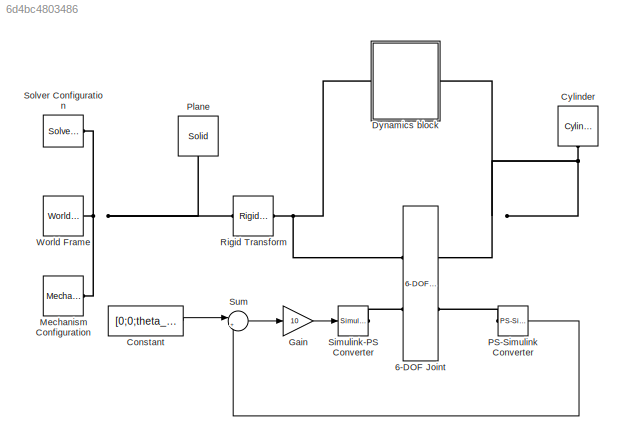
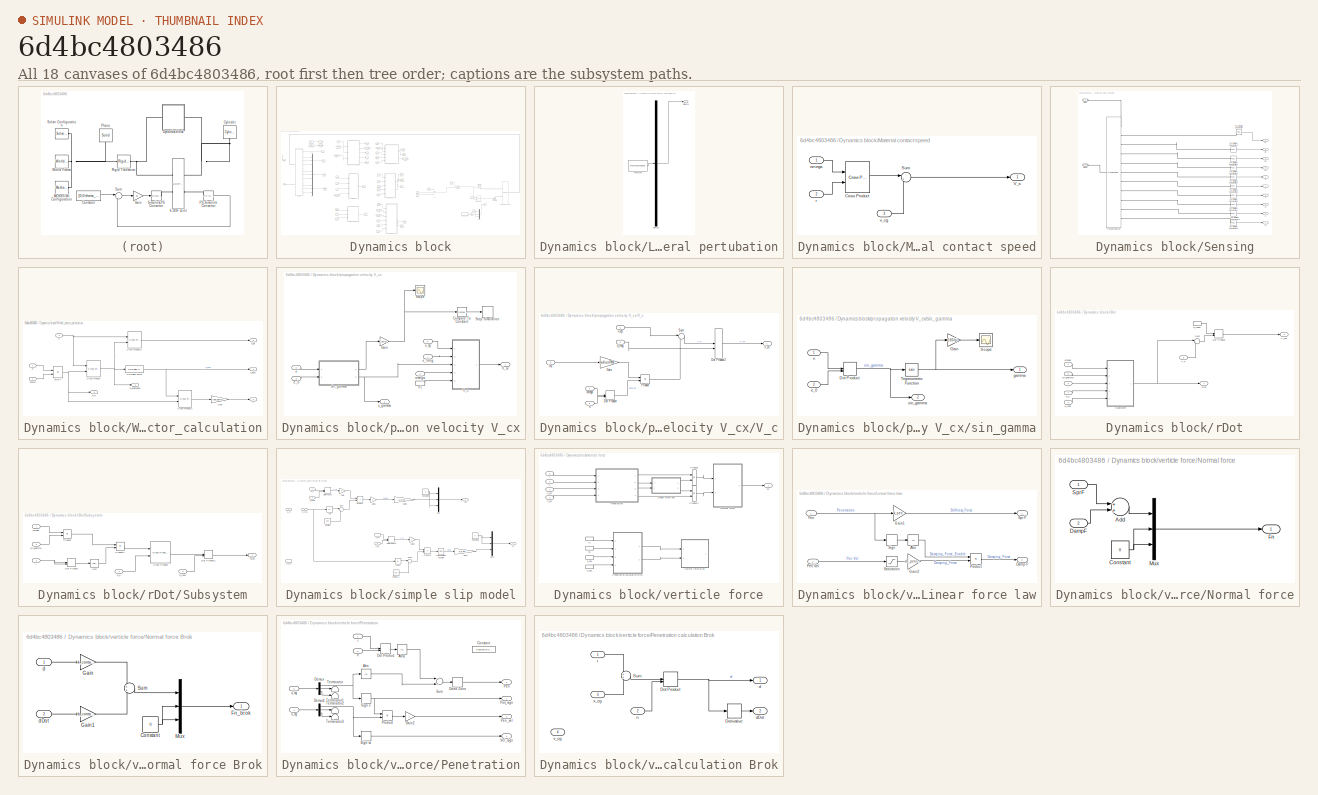
[diagram: thumbnail index - all 18 canvases of the model, root first then tree order]
MODEL slx_6d4bc4803486
KIND model
CONFIG AbsTol = auto
CONFIG EnableMultiTasking = off
CONFIG FixedStep = auto
CONFIG MaxStep = auto
CONFIG MinStep = auto
CONFIG RelTol = 1e-3
CONFIG SampleTimeConstraint = Unconstrained
CONFIG Solver = VariableStepAuto
CONFIG SolverName = VariableStepAuto
CONFIG StartTime = 0.0
CONFIG StopTime = 12
BLOCK [Reference] 6-DOF Joint  REF=sm_lib/Joints/6-DOF Joint
  Ports = [0, 0, 0, 0, 0, 2, 2]
  SourceBlock = sm_lib/Joints/6-DOF Joint
  SourceProductBaseCode = MS
  SourceProductName = Simscape Multibody
  SourceType = 6-DOF Joint
BLOCK [Constant] Constant
  Value = [0;0;theta_0]
BLOCK [Reference] Cylinder  REF=Parts_Lib/Cylinder
  Ports = [0, 0, 0, 0, 0, 1]
  SourceBlock = Parts_Lib/Cylinder
  SourceType = Solid Cylinder with Markings
  Tag = CustomStyle
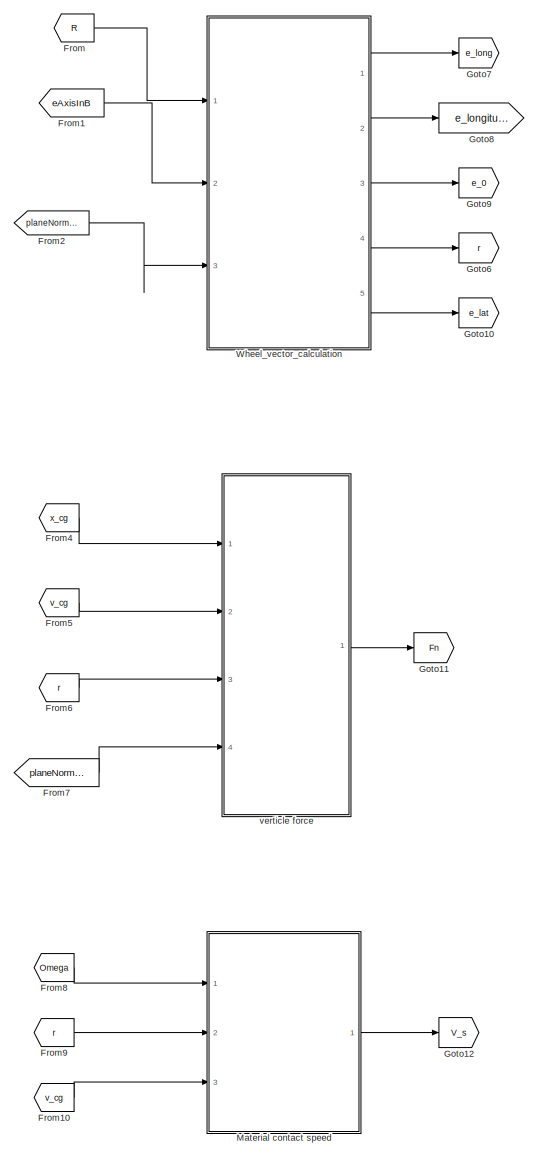
[diagram: Dynamics block - part 1/4, left side, full height]
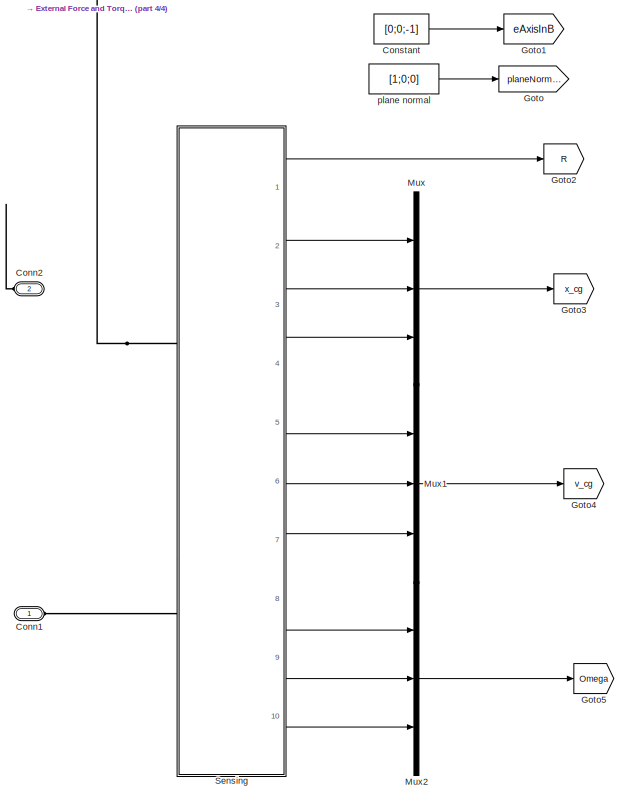
[diagram: Dynamics block - part 2/4, middle left region]
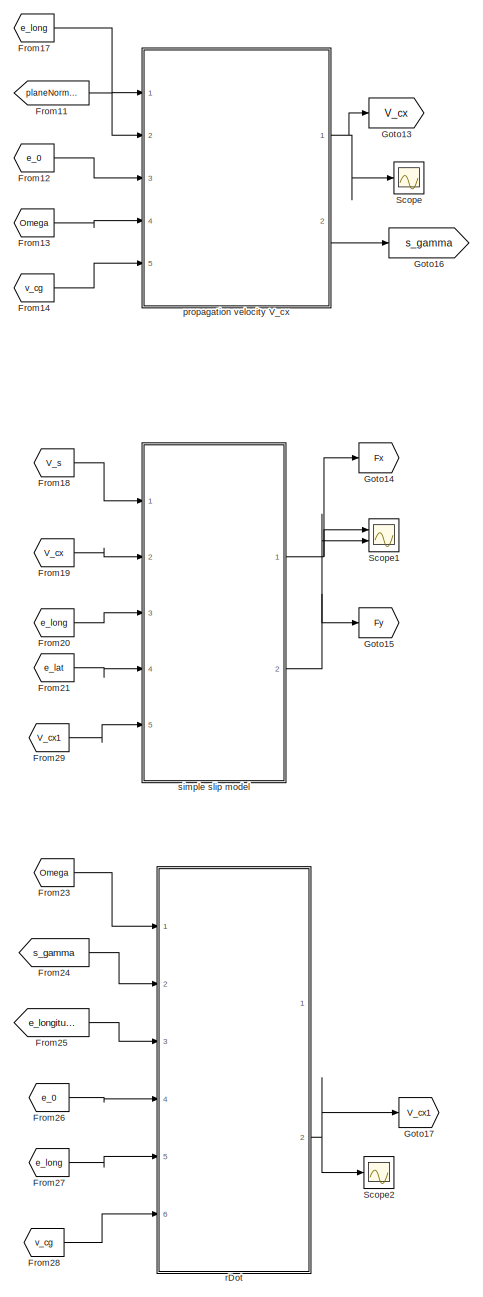
[diagram: Dynamics block - part 3/4, center side, full height]
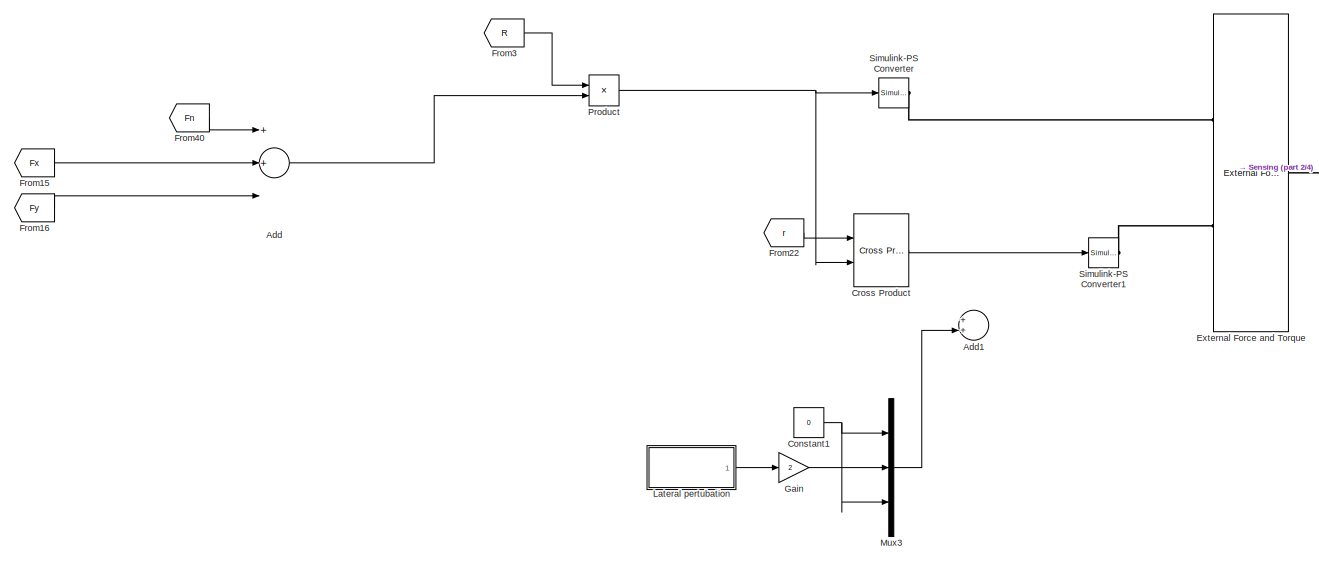
[diagram: Dynamics block - part 4/4, middle right region]
BLOCK [SubSystem] Dynamics block
  Ports = [0, 0, 0, 0, 0, 1, 1]
  RequestExecContextInheritance = off
  Variant = off
BLOCK [Sum] Dynamics block/Add
  InputSameDT = off
  Inputs = 3
  OutDataTypeStr = Inherit: Inherit via internal rule
  Ports = [3, 1]
  SaturateOnIntegerOverflow = off
BLOCK [Sum] Dynamics block/Add1
  Commented = on
  InputSameDT = off
  OutDataTypeStr = Inherit: Inherit via internal rule
  Ports = [2, 1]
  SaturateOnIntegerOverflow = off
BLOCK [PMIOPort] Dynamics block/Conn1
  Port = 1
  Side = Left
BLOCK [PMIOPort] Dynamics block/Conn2
  Port = 2
  Side = Right
BLOCK [Constant] Dynamics block/Constant
  Value = [0;0;-1]
BLOCK [Constant] Dynamics block/Constant1
  Commented = on
  Value = 0
BLOCK [Reference] Dynamics block/Cross Product  REF=vrlib/Utilities/Cross Product
  Ports = [2, 1]
  SourceBlock = vrlib/Utilities/Cross Product
  SourceProductBaseCode = VR
  SourceProductName = Simulink 3D Animation
  SourceType = Cross Product
BLOCK [Reference] Dynamics block/External Force and Torque  REF=sm_lib/Forces and
Torques/External Force
and Torque
  Ports = [0, 0, 0, 0, 0, 2, 1]
  SourceBlock = sm_lib/Forces and\nTorques/External Force\nand Torque
  SourceProductBaseCode = MS
  SourceProductName = Simscape Multibody
  SourceType = External Force\nand Torque
BLOCK [From] Dynamics block/From
  GotoTag = R
BLOCK [From] Dynamics block/From1
  GotoTag = eAxisInB
BLOCK [From] Dynamics block/From10
  GotoTag = v_cg
BLOCK [From] Dynamics block/From11
  GotoTag = planeNormal
BLOCK [From] Dynamics block/From12
  GotoTag = e_0
BLOCK [From] Dynamics block/From13
  GotoTag = Omega
BLOCK [From] Dynamics block/From14
  GotoTag = v_cg
BLOCK [From] Dynamics block/From15
  GotoTag = Fx
BLOCK [From] Dynamics block/From16
  GotoTag = Fy
BLOCK [From] Dynamics block/From17
  GotoTag = e_long
BLOCK [From] Dynamics block/From18
  GotoTag = V_s
BLOCK [From] Dynamics block/From19
  GotoTag = V_cx
BLOCK [From] Dynamics block/From2
  GotoTag = planeNormal
BLOCK [From] Dynamics block/From20
  GotoTag = e_long
BLOCK [From] Dynamics block/From21
  GotoTag = e_lat
BLOCK [From] Dynamics block/From22
  GotoTag = r
BLOCK [From] Dynamics block/From23
  GotoTag = Omega
BLOCK [From] Dynamics block/From24
  GotoTag = s_gamma
BLOCK [From] Dynamics block/From25
  GotoTag = e_longitudinal
BLOCK [From] Dynamics block/From26
  GotoTag = e_0
BLOCK [From] Dynamics block/From27
  GotoTag = e_long
BLOCK [From] Dynamics block/From28
  GotoTag = v_cg
BLOCK [From] Dynamics block/From29
  GotoTag = V_cx1
BLOCK [From] Dynamics block/From3
  GotoTag = R
BLOCK [From] Dynamics block/From4
  GotoTag = x_cg
BLOCK [From] Dynamics block/From40
  GotoTag = Fn
BLOCK [From] Dynamics block/From5
  GotoTag = v_cg
BLOCK [From] Dynamics block/From6
  GotoTag = r
BLOCK [From] Dynamics block/From7
  GotoTag = planeNormal
BLOCK [From] Dynamics block/From8
  GotoTag = Omega
BLOCK [From] Dynamics block/From9
  GotoTag = r
BLOCK [Gain] Dynamics block/Gain
  Commented = on
  Gain = 2
  OutDataTypeStr = Inherit: Inherit via internal rule
  ParamDataTypeStr = Inherit: Inherit via internal rule
  SaturateOnIntegerOverflow = off
BLOCK [Goto] Dynamics block/Goto
  GotoTag = planeNormal
BLOCK [Goto] Dynamics block/Goto1
  GotoTag = eAxisInB
BLOCK [Goto] Dynamics block/Goto10
  GotoTag = e_lat
BLOCK [Goto] Dynamics block/Goto11
  GotoTag = Fn
BLOCK [Goto] Dynamics block/Goto12
  GotoTag = V_s
BLOCK [Goto] Dynamics block/Goto13
  GotoTag = V_cx
BLOCK [Goto] Dynamics block/Goto14
  GotoTag = Fx
BLOCK [Goto] Dynamics block/Goto15
  GotoTag = Fy
BLOCK [Goto] Dynamics block/Goto16
  GotoTag = s_gamma
BLOCK [Goto] Dynamics block/Goto17
  GotoTag = V_cx1
BLOCK [Goto] Dynamics block/Goto2
  GotoTag = R
BLOCK [Goto] Dynamics block/Goto3
  GotoTag = x_cg
BLOCK [Goto] Dynamics block/Goto4
  GotoTag = v_cg
BLOCK [Goto] Dynamics block/Goto5
  GotoTag = Omega
BLOCK [Goto] Dynamics block/Goto6
  GotoTag = r
BLOCK [Goto] Dynamics block/Goto7
  GotoTag = e_long
BLOCK [Goto] Dynamics block/Goto8
  GotoTag = e_longitudinal
BLOCK [Goto] Dynamics block/Goto9
  GotoTag = e_0
BLOCK [SubSystem] Dynamics block/Lateral pertubation
  ClipboardFcn = sigbuilder_block('clipboard');
  CloseFcn = sigbuilder_block('close');
  Commented = on
  ContinueFcn = sigbuilder_block('continue');
  CopyFcn = sigbuilder_block('copy');
  DeleteFcn = sigbuilder_block('delete');
  LoadFcn = sigbuilder_block('load');
  MaskHideContents = on
  ModelCloseFcn = sigbuilder_block('modelClose');
  NameChangeFcn = sigbuilder_block('namechange');
  OpenFcn = sigbuilder_block('open',[437.6 199.2 550.4 400 ]);
  PauseFcn = sigbuilder_block('pause');
  Ports = [0, 1]
  PreSaveFcn = sigbuilder_block('preSave');
  RequestExecContextInheritance = off
  StartFcn = sigbuilder_block('start');
  StopFcn = sigbuilder_block('stop');
  Tag = STV Subsys
  Variant = off
BLOCK [Demux] Dynamics block/Lateral pertubation/Demux
  Outputs = 1
  Ports = [1, 1]
  Tag = STV Demux
BLOCK [FromWorkspace] Dynamics block/Lateral pertubation/FromWs
  SampleTime = 0
  Tag = STV FromWs
  VariableName = tuvar
  ZeroCross = on
BLOCK [Outport] Dynamics block/Lateral pertubation/Signal 1
  IconDisplay = Port number
  Tag = STV Outport
BLOCK [SubSystem] Dynamics block/Material contact speed
  Ports = [3, 1]
  RequestExecContextInheritance = off
  Variant = off
BLOCK [Reference] Dynamics block/Material contact speed/Cross Product  REF=vrlib/Utilities/Cross Product
  Ports = [2, 1]
  SourceBlock = vrlib/Utilities/Cross Product
  SourceProductBaseCode = VR
  SourceProductName = Simulink 3D Animation
  SourceType = Cross Product
BLOCK [Sum] Dynamics block/Material contact speed/Sum
  IconShape = round
  InputSameDT = off
  Inputs = |++
  OutDataTypeStr = Inherit: Inherit via internal rule
  Ports = [2, 1]
  SaturateOnIntegerOverflow = off
BLOCK [Outport] Dynamics block/Material contact speed/V_s
  IconDisplay = Port number
BLOCK [Inport] Dynamics block/Material contact speed/omega
  IconDisplay = Port number
BLOCK [Inport] Dynamics block/Material contact speed/r
  IconDisplay = Port number
  Port = 2
BLOCK [Inport] Dynamics block/Material contact speed/v_cg
  IconDisplay = Port number
  Port = 3
BLOCK [Mux] Dynamics block/Mux
  DisplayOption = bar
  Inputs = 3
  Ports = [3, 1]
BLOCK [Mux] Dynamics block/Mux1
  DisplayOption = bar
  Inputs = 3
  Ports = [3, 1]
BLOCK [Mux] Dynamics block/Mux2
  DisplayOption = bar
  Inputs = 3
  Ports = [3, 1]
BLOCK [Mux] Dynamics block/Mux3
  Commented = on
  DisplayOption = bar
  Inputs = 3
  Ports = [3, 1]
BLOCK [Product] Dynamics block/Product
  InputSameDT = off
  Inputs = /*
  Multiplication = Matrix(*)
  OutDataTypeStr = Inherit: Inherit via internal rule
  Ports = [2, 1]
  RndMeth = Floor
  SaturateOnIntegerOverflow = off
BLOCK [Scope] Dynamics block/Scope
  NumInputPorts = 1
  Ports = [1]
  ScopeSpecificationString = Simulink.scopes.TimeScopeBlockCfg('CurrentConfiguration', extmgr.ConfigurationSet(extmgr.Configuration('Core','General UI',true),extmgr.Configuration('Core','Source UI',true),extmgr.Configuration('Sources','WiredSimulink',true,'DataLoggingVariableName','ScopeData1'),extmgr.Configuration('Visuals','Time Domain',true,'SerializedDisplays',{struct('MinYLimReal','-0.30794','MaxYLimReal','2.77145','YLab...<+1419ch>
BLOCK [Scope] Dynamics block/Scope1
  NumInputPorts = 2
  Ports = [2]
  ScopeSpecificationString = Simulink.scopes.TimeScopeBlockCfg('CurrentConfiguration', extmgr.ConfigurationSet(extmgr.Configuration('Core','General UI',true),extmgr.Configuration('Core','Source UI',true),extmgr.Configuration('Sources','WiredSimulink',true,'DataLoggingVariableName','ScopeData2'),extmgr.Configuration('Visuals','Time Domain',true,'SerializedDisplays',{struct('MinYLimReal','-14.33422','MaxYLimReal','35.2774','YLa...<+1531ch>
BLOCK [Scope] Dynamics block/Scope2
  NumInputPorts = 1
  Ports = [1]
  ScopeSpecificationString = Simulink.scopes.TimeScopeBlockCfg('CurrentConfiguration', extmgr.ConfigurationSet(extmgr.Configuration('Core','General UI',true),extmgr.Configuration('Core','Source UI',true),extmgr.Configuration('Sources','WiredSimulink',true,'DataLoggingVariableName','ScopeData3'),extmgr.Configuration('Visuals','Time Domain',true,'SerializedDisplays',{struct('MinYLimReal','-0.38646','MaxYLimReal','3.47811','YLab...<+1395ch>
BLOCK [SubSystem] Dynamics block/Sensing
  Ports = [0, 10, 0, 0, 0, 2]
  RequestExecContextInheritance = off
  Variant = off
BLOCK [PMIOPort] Dynamics block/Sensing/Disk
  Port = 1
  Side = Left
BLOCK [Reference] Dynamics block/Sensing/PS-Simulink Converter  REF=nesl_utility/PS-Simulink
Converter
  Ports = [0, 1, 0, 0, 0, 1]
  SourceBlock = nesl_utility/PS-Simulink\nConverter
  SourceProductBaseCode = SS
  SourceProductName = Simscape
  SourceType = PS-Simulink\nConverter
BLOCK [Reference] Dynamics block/Sensing/PS-Simulink Converter1  REF=nesl_utility/PS-Simulink
Converter
  Ports = [0, 1, 0, 0, 0, 1]
  SourceBlock = nesl_utility/PS-Simulink\nConverter
  SourceProductBaseCode = SS
  SourceProductName = Simscape
  SourceType = PS-Simulink\nConverter
BLOCK [Reference] Dynamics block/Sensing/PS-Simulink Converter2  REF=nesl_utility/PS-Simulink
Converter
  Ports = [0, 1, 0, 0, 0, 1]
  SourceBlock = nesl_utility/PS-Simulink\nConverter
  SourceProductBaseCode = SS
  SourceProductName = Simscape
  SourceType = PS-Simulink\nConverter
BLOCK [Reference] Dynamics block/Sensing/PS-Simulink Converter3  REF=nesl_utility/PS-Simulink
Converter
  Ports = [0, 1, 0, 0, 0, 1]
  SourceBlock = nesl_utility/PS-Simulink\nConverter
  SourceProductBaseCode = SS
  SourceProductName = Simscape
  SourceType = PS-Simulink\nConverter
BLOCK [Reference] Dynamics block/Sensing/PS-Simulink Converter4  REF=nesl_utility/PS-Simulink
Converter
  Ports = [0, 1, 0, 0, 0, 1]
  SourceBlock = nesl_utility/PS-Simulink\nConverter
  SourceProductBaseCode = SS
  SourceProductName = Simscape
  SourceType = PS-Simulink\nConverter
BLOCK [Reference] Dynamics block/Sensing/PS-Simulink Converter5  REF=nesl_utility/PS-Simulink
Converter
  Ports = [0, 1, 0, 0, 0, 1]
  SourceBlock = nesl_utility/PS-Simulink\nConverter
  SourceProductBaseCode = SS
  SourceProductName = Simscape
  SourceType = PS-Simulink\nConverter
BLOCK [Reference] Dynamics block/Sensing/PS-Simulink Converter6  REF=nesl_utility/PS-Simulink
Converter
  Ports = [0, 1, 0, 0, 0, 1]
  SourceBlock = nesl_utility/PS-Simulink\nConverter
  SourceProductBaseCode = SS
  SourceProductName = Simscape
  SourceType = PS-Simulink\nConverter
BLOCK [Reference] Dynamics block/Sensing/PS-Simulink Converter7  REF=nesl_utility/PS-Simulink
Converter
  Ports = [0, 1, 0, 0, 0, 1]
  SourceBlock = nesl_utility/PS-Simulink\nConverter
  SourceProductBaseCode = SS
  SourceProductName = Simscape
  SourceType = PS-Simulink\nConverter
BLOCK [Reference] Dynamics block/Sensing/PS-Simulink Converter8  REF=nesl_utility/PS-Simulink
Converter
  Ports = [0, 1, 0, 0, 0, 1]
  SourceBlock = nesl_utility/PS-Simulink\nConverter
  SourceProductBaseCode = SS
  SourceProductName = Simscape
  SourceType = PS-Simulink\nConverter
BLOCK [Reference] Dynamics block/Sensing/PS-Simulink Converter9  REF=nesl_utility/PS-Simulink
Converter
  Ports = [0, 1, 0, 0, 0, 1]
  SourceBlock = nesl_utility/PS-Simulink\nConverter
  SourceProductBaseCode = SS
  SourceProductName = Simscape
  SourceType = PS-Simulink\nConverter
BLOCK [Outport] Dynamics block/Sensing/R
  IconDisplay = Port number
BLOCK [Reference] Dynamics block/Sensing/Transform Sensor  REF=sm_lib/Frames and
Transforms/Transform
Sensor
  Ports = [0, 0, 0, 0, 0, 1, 11]
  SourceBlock = sm_lib/Frames and\nTransforms/Transform\nSensor
  SourceProductBaseCode = MS
  SourceProductName = Simscape Multibody
  SourceType = Transform\nSensor
BLOCK [PMIOPort] Dynamics block/Sensing/plane
  Port = 2
  Side = Left
BLOCK [Outport] Dynamics block/Sensing/vx
  IconDisplay = Port number
  Port = 5
BLOCK [Outport] Dynamics block/Sensing/vy
  IconDisplay = Port number
  Port = 6
BLOCK [Outport] Dynamics block/Sensing/vz
  IconDisplay = Port number
  Port = 7
BLOCK [Outport] Dynamics block/Sensing/wx
  IconDisplay = Port number
  Port = 8
BLOCK [Outport] Dynamics block/Sensing/wy
  IconDisplay = Port number
  Port = 9
BLOCK [Outport] Dynamics block/Sensing/wz
  IconDisplay = Port number
  Port = 10
BLOCK [Outport] Dynamics block/Sensing/x
  IconDisplay = Port number
  Port = 2
BLOCK [Outport] Dynamics block/Sensing/y
  IconDisplay = Port number
  Port = 3
BLOCK [Outport] Dynamics block/Sensing/z
  IconDisplay = Port number
  Port = 4
BLOCK [Reference] Dynamics block/Simulink-PS Converter  REF=nesl_utility/Simulink-PS
Converter
  Ports = [1, 0, 0, 0, 0, 0, 1]
  SourceBlock = nesl_utility/Simulink-PS\nConverter
  SourceProductBaseCode = SS
  SourceProductName = Simscape
  SourceType = Simulink-PS\nConverter
BLOCK [Reference] Dynamics block/Simulink-PS Converter1  REF=nesl_utility/Simulink-PS
Converter
  Ports = [1, 0, 0, 0, 0, 0, 1]
  SourceBlock = nesl_utility/Simulink-PS\nConverter
  SourceProductBaseCode = SS
  SourceProductName = Simscape
  SourceType = Simulink-PS\nConverter
BLOCK [SubSystem] Dynamics block/Wheel_vector_calculation
  Ports = [3, 5]
  RequestExecContextInheritance = off
  Variant = off
BLOCK [Reference] Dynamics block/Wheel_vector_calculation/Cross Product  REF=vrlib/Utilities/Cross Product
  Ports = [2, 1]
  SourceBlock = vrlib/Utilities/Cross Product
  SourceProductBaseCode = VR
  SourceProductName = Simulink 3D Animation
  SourceType = Cross Product
BLOCK [Reference] Dynamics block/Wheel_vector_calculation/Cross Product1  REF=vrlib/Utilities/Cross Product
  Ports = [2, 1]
  SourceBlock = vrlib/Utilities/Cross Product
  SourceProductBaseCode = VR
  SourceProductName = Simulink 3D Animation
  SourceType = Cross Product
BLOCK [Reference] Dynamics block/Wheel_vector_calculation/Cross Product2  REF=vrlib/Utilities/Cross Product
  Ports = [2, 1]
  SourceBlock = vrlib/Utilities/Cross Product
  SourceProductBaseCode = VR
  SourceProductName = Simulink 3D Animation
  SourceType = Cross Product
BLOCK [Gain] Dynamics block/Wheel_vector_calculation/Gain
  Gain = radiusRW
  OutDataTypeStr = Inherit: Inherit via internal rule
  ParamDataTypeStr = Inherit: Inherit via internal rule
  SaturateOnIntegerOverflow = off
BLOCK [Reference] Dynamics block/Wheel_vector_calculation/Normalize Vector  REF=vrlib/Utilities/Normalize Vector
  Ports = [1, 1]
  SourceBlock = vrlib/Utilities/Normalize Vector
  SourceProductBaseCode = VR
  SourceProductName = Simulink 3D Animation
  SourceType = Normalize Vector
BLOCK [Inport] Dynamics block/Wheel_vector_calculation/R
  IconDisplay = Port number
BLOCK [Product] Dynamics block/Wheel_vector_calculation/e0 in F
  InputSameDT = off
  Multiplication = Matrix(*)
  OutDataTypeStr = Inherit: Inherit via internal rule
  Ports = [2, 1]
  RndMeth = Floor
  SaturateOnIntegerOverflow = off
BLOCK [Inport] Dynamics block/Wheel_vector_calculation/e0Star
  IconDisplay = Port number
  Port = 2
BLOCK [Outport] Dynamics block/Wheel_vector_calculation/e_0
  IconDisplay = Port number
  Port = 3
BLOCK [Outport] Dynamics block/Wheel_vector_calculation/e_lat
  IconDisplay = Port number
  Port = 5
BLOCK [Outport] Dynamics block/Wheel_vector_calculation/e_long
  IconDisplay = Port number
BLOCK [Outport] Dynamics block/Wheel_vector_calculation/e_longitudinal
  IconDisplay = Port number
  Port = 2
BLOCK [Inport] Dynamics block/Wheel_vector_calculation/n
  IconDisplay = Port number
  Port = 3
BLOCK [Outport] Dynamics block/Wheel_vector_calculation/r
  IconDisplay = Port number
  Port = 4
BLOCK [Constant] Dynamics block/plane normal
  Value = [1;0;0]
BLOCK [SubSystem] Dynamics block/propagation velocity V_cx
  Ports = [5, 2]
  RequestExecContextInheritance = off
  Variant = off
BLOCK [Reference] Dynamics block/propagation velocity V_cx/Compare To Constant  REF=simulink/Logic and Bit
Operations/Compare
To Constant
  Ports = [1, 1]
  SourceBlock = simulink/Logic and Bit\nOperations/Compare\nTo Constant
  SourceProductBaseCode = SL
  SourceProductName = Simulink
  SourceType = Compare To Constant
BLOCK [Gain] Dynamics block/propagation velocity V_cx/Gain
  Gain = -180/pi
  OutDataTypeStr = Inherit: Inherit via internal rule
  ParamDataTypeStr = Inherit: Inherit via internal rule
  SaturateOnIntegerOverflow = off
BLOCK [Scope] Dynamics block/propagation velocity V_cx/Scope
  NumInputPorts = 1
  Ports = [1]
  ScopeSpecificationString = Simulink.scopes.TimeScopeBlockCfg('CurrentConfiguration', extmgr.ConfigurationSet(extmgr.Configuration('Core','General UI',true),extmgr.Configuration('Core','Source UI',true),extmgr.Configuration('Sources','WiredSimulink',true,'DataLoggingVariableName','ScopeData4'),extmgr.Configuration('Visuals','Time Domain',true,'SerializedDisplays',{struct('MinYLimReal','12.7368','MaxYLimReal','85.25147','YLab...<+1365ch>
BLOCK [Stop] Dynamics block/propagation velocity V_cx/Stop Simulation
BLOCK [SubSystem] Dynamics block/propagation velocity V_cx/V_c
  Ports = [5, 1]
  RequestExecContextInheritance = off
  Variant = off
BLOCK [DotProduct] Dynamics block/propagation velocity V_cx/V_c/Dot Product
  OutDataTypeStr = Inherit: Inherit via internal rule
BLOCK [DotProduct] Dynamics block/propagation velocity V_cx/V_c/Dot Product2
  OutDataTypeStr = Inherit: Inherit via internal rule
BLOCK [Gain] Dynamics block/propagation velocity V_cx/V_c/Gain
  Gain = radiusRW
  OutDataTypeStr = Inherit: Inherit via internal rule
  ParamDataTypeStr = Inherit: Inherit via internal rule
  SaturateOnIntegerOverflow = off
BLOCK [Inport] Dynamics block/propagation velocity V_cx/V_c/In3
  IconDisplay = Port number
  Port = 3
BLOCK [Product] Dynamics block/propagation velocity V_cx/V_c/Product
  InputSameDT = off
  OutDataTypeStr = Inherit: Inherit via internal rule
  Ports = [2, 1]
  RndMeth = Floor
  SaturateOnIntegerOverflow = off
BLOCK [Sum] Dynamics block/propagation velocity V_cx/V_c/Sum
  IconShape = round
  InputSameDT = off
  Inputs = |++
  OutDataTypeStr = Inherit: Inherit via internal rule
  Ports = [2, 1]
  SaturateOnIntegerOverflow = off
BLOCK [Outport] Dynamics block/propagation velocity V_cx/V_c/V_cx
  IconDisplay = Port number
BLOCK [Inport] Dynamics block/propagation velocity V_cx/V_c/e_long
  IconDisplay = Port number
  Port = 2
BLOCK [Inport] Dynamics block/propagation velocity V_cx/V_c/n
  IconDisplay = Port number
  Port = 5
BLOCK [Inport] Dynamics block/propagation velocity V_cx/V_c/omega
  IconDisplay = Port number
  Port = 4
BLOCK [Inport] Dynamics block/propagation velocity V_cx/V_c/v_cg
  IconDisplay = Port number
BLOCK [Outport] Dynamics block/propagation velocity V_cx/V_cx
  IconDisplay = Port number
BLOCK [Inport] Dynamics block/propagation velocity V_cx/e_0
  IconDisplay = Port number
  Port = 3
BLOCK [Inport] Dynamics block/propagation velocity V_cx/e_long
  IconDisplay = Port number
BLOCK [Inport] Dynamics block/propagation velocity V_cx/n
  IconDisplay = Port number
  Port = 2
BLOCK [InportShadow] Dynamics block/propagation velocity V_cx/n1
  IconDisplay = Port number
  Port = 2
BLOCK [Inport] Dynamics block/propagation velocity V_cx/omega
  IconDisplay = Port number
  Port = 4
BLOCK [Outport] Dynamics block/propagation velocity V_cx/s_gamma
  IconDisplay = Port number
  Port = 2
BLOCK [SubSystem] Dynamics block/propagation velocity V_cx/sin_gamma
  Ports = [2, 2]
  RequestExecContextInheritance = off
  Variant = off
BLOCK [DotProduct] Dynamics block/propagation velocity V_cx/sin_gamma/Dot Product
  OutDataTypeStr = Inherit: Inherit via internal rule
BLOCK [Gain] Dynamics block/propagation velocity V_cx/sin_gamma/Gain
  Gain = 180/pi
  OutDataTypeStr = Inherit: Inherit via internal rule
  ParamDataTypeStr = Inherit: Inherit via internal rule
  SaturateOnIntegerOverflow = off
BLOCK [Scope] Dynamics block/propagation velocity V_cx/sin_gamma/Scope
  NumInputPorts = 1
  Ports = [1]
  ScopeSpecificationString = Simulink.scopes.TimeScopeBlockCfg('CurrentConfiguration', extmgr.ConfigurationSet(extmgr.Configuration('Core','General UI',true),extmgr.Configuration('Core','Source UI',true),extmgr.Configuration('Sources','WiredSimulink',true),extmgr.Configuration('Visuals','Time Domain',true,'SerializedDisplays',{struct('MinYLimReal','-85.25147','MaxYLimReal','-12.7368','YLabelReal','','MinYLimMag','0.00000','Ma...<+1330ch>
BLOCK [Trigonometry] Dynamics block/propagation velocity V_cx/sin_gamma/Trigonometric Function
  Operator = asin
  Ports = [1, 1]
BLOCK [Inport] Dynamics block/propagation velocity V_cx/sin_gamma/e_0
  IconDisplay = Port number
  Port = 2
BLOCK [Outport] Dynamics block/propagation velocity V_cx/sin_gamma/gamma
  IconDisplay = Port number
BLOCK [Inport] Dynamics block/propagation velocity V_cx/sin_gamma/n
  IconDisplay = Port number
BLOCK [Outport] Dynamics block/propagation velocity V_cx/sin_gamma/sin_gamma
  IconDisplay = Port number
  Port = 2
BLOCK [Inport] Dynamics block/propagation velocity V_cx/v_cg
  IconDisplay = Port number
  Port = 5
BLOCK [SubSystem] Dynamics block/rDot
  Ports = [6, 2]
  RequestExecContextInheritance = off
  Variant = off
BLOCK [DotProduct] Dynamics block/rDot/Dot Product
  OutDataTypeStr = Inherit: Inherit via internal rule
BLOCK [SubSystem] Dynamics block/rDot/Subsystem
  Ports = [5, 1]
  RequestExecContextInheritance = off
  Variant = off
BLOCK [Reference] Dynamics block/rDot/Subsystem/Cross Product  REF=vrlib/Utilities/Cross Product
  Ports = [2, 1]
  SourceBlock = vrlib/Utilities/Cross Product
  SourceProductBaseCode = VR
  SourceProductName = Simulink 3D Animation
  SourceType = Cross Product
BLOCK [DotProduct] Dynamics block/rDot/Subsystem/Dot Product
  OutDataTypeStr = Inherit: Inherit via internal rule
BLOCK [DotProduct] Dynamics block/rDot/Subsystem/Dot Product1
  OutDataTypeStr = Inherit: Inherit via internal rule
BLOCK [Product] Dynamics block/rDot/Subsystem/Product
  InputSameDT = off
  OutDataTypeStr = Inherit: Inherit via internal rule
  Ports = [2, 1]
  RndMeth = Floor
  SaturateOnIntegerOverflow = off
BLOCK [Product] Dynamics block/rDot/Subsystem/Product1
  InputSameDT = off
  Inputs = */
  OutDataTypeStr = Inherit: Inherit via internal rule
  Ports = [2, 1]
  RndMeth = Floor
  SaturateOnIntegerOverflow = off
BLOCK [Sqrt] Dynamics block/rDot/Subsystem/Sqrt
BLOCK [Inport] Dynamics block/rDot/Subsystem/e_0
  IconDisplay = Port number
  Port = 4
BLOCK [Inport] Dynamics block/rDot/Subsystem/e_long
  IconDisplay = Port number
  Port = 5
BLOCK [Inport] Dynamics block/rDot/Subsystem/l
  IconDisplay = Port number
  Port = 3
BLOCK [Inport] Dynamics block/rDot/Subsystem/omega
  IconDisplay = Port number
BLOCK [Outport] Dynamics block/rDot/Subsystem/rDot
  IconDisplay = Port number
BLOCK [Inport] Dynamics block/rDot/Subsystem/sin_gamma
  IconDisplay = Port number
  Port = 2
BLOCK [Sum] Dynamics block/rDot/Sum
  IconShape = round
  InputSameDT = off
  Inputs = |++
  OutDataTypeStr = Inherit: Inherit via internal rule
  Ports = [2, 1]
  SaturateOnIntegerOverflow = off
BLOCK [Outport] Dynamics block/rDot/V_cx1
  IconDisplay = Port number
  Port = 2
BLOCK [Inport] Dynamics block/rDot/V_x
  IconDisplay = Port number
  Port = 6
BLOCK [Inport] Dynamics block/rDot/e_0
  IconDisplay = Port number
  Port = 4
BLOCK [Inport] Dynamics block/rDot/e_long
  IconDisplay = Port number
  Port = 5
BLOCK [InportShadow] Dynamics block/rDot/e_long1
  IconDisplay = Port number
  Port = 5
BLOCK [Inport] Dynamics block/rDot/l
  IconDisplay = Port number
  Port = 3
BLOCK [Inport] Dynamics block/rDot/omega
  IconDisplay = Port number
BLOCK [Outport] Dynamics block/rDot/rDot
  IconDisplay = Port number
BLOCK [Inport] Dynamics block/rDot/sin_gamma
  IconDisplay = Port number
  Port = 2
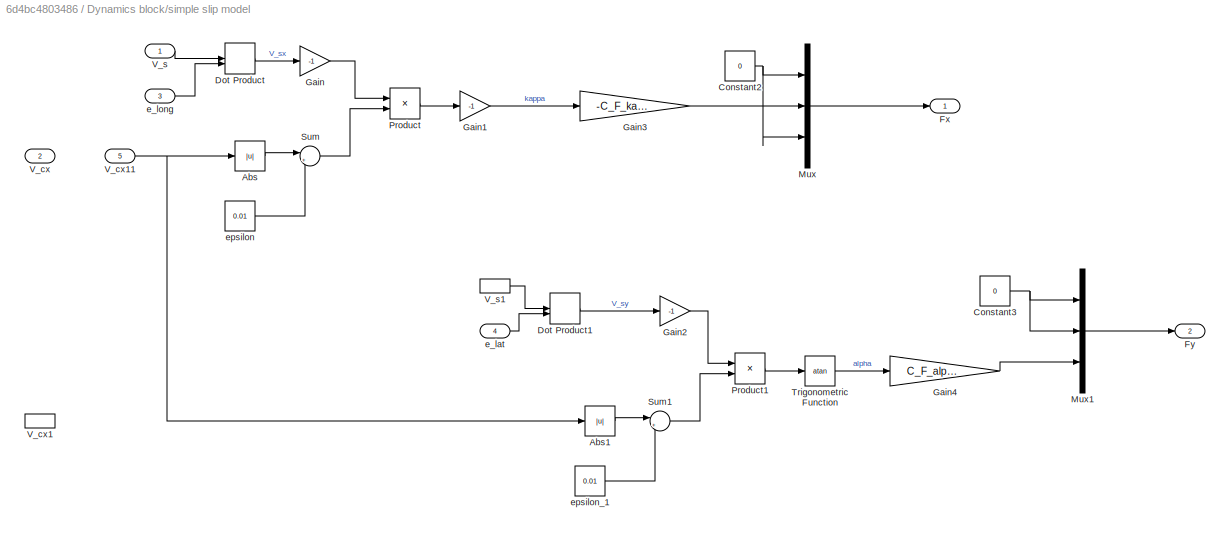
BLOCK [SubSystem] Dynamics block/simple slip model
  Ports = [5, 2]
  RequestExecContextInheritance = off
  Variant = off
BLOCK [Abs] Dynamics block/simple slip model/Abs
  SaturateOnIntegerOverflow = off
BLOCK [Abs] Dynamics block/simple slip model/Abs1
  SaturateOnIntegerOverflow = off
BLOCK [Constant] Dynamics block/simple slip model/Constant2
  Value = 0
BLOCK [Constant] Dynamics block/simple slip model/Constant3
  Value = 0
BLOCK [DotProduct] Dynamics block/simple slip model/Dot Product
  OutDataTypeStr = Inherit: Inherit via internal rule
BLOCK [DotProduct] Dynamics block/simple slip model/Dot Product1
  OutDataTypeStr = Inherit: Inherit via internal rule
BLOCK [Outport] Dynamics block/simple slip model/Fx
  IconDisplay = Port number
BLOCK [Outport] Dynamics block/simple slip model/Fy
  IconDisplay = Port number
  Port = 2
BLOCK [Gain] Dynamics block/simple slip model/Gain
  Gain = -1
  OutDataTypeStr = Inherit: Inherit via internal rule
  ParamDataTypeStr = Inherit: Inherit via internal rule
  SaturateOnIntegerOverflow = off
BLOCK [Gain] Dynamics block/simple slip model/Gain1
  Gain = -1
  OutDataTypeStr = Inherit: Inherit via internal rule
  ParamDataTypeStr = Inherit: Inherit via internal rule
  SaturateOnIntegerOverflow = off
BLOCK [Gain] Dynamics block/simple slip model/Gain2
  Gain = -1
  OutDataTypeStr = Inherit: Inherit via internal rule
  ParamDataTypeStr = Inherit: Inherit via internal rule
  SaturateOnIntegerOverflow = off
BLOCK [Gain] Dynamics block/simple slip model/Gain3
  Gain = -C_F_kappa
  OutDataTypeStr = Inherit: Inherit via internal rule
  ParamDataTypeStr = Inherit: Inherit via internal rule
  SaturateOnIntegerOverflow = off
BLOCK [Gain] Dynamics block/simple slip model/Gain4
  Gain = C_F_alpha
  OutDataTypeStr = Inherit: Inherit via internal rule
  ParamDataTypeStr = Inherit: Inherit via internal rule
  SaturateOnIntegerOverflow = off
BLOCK [Mux] Dynamics block/simple slip model/Mux
  DisplayOption = bar
  Inputs = 3
  Ports = [3, 1]
BLOCK [Mux] Dynamics block/simple slip model/Mux1
  DisplayOption = bar
  Inputs = 3
  Ports = [3, 1]
BLOCK [Product] Dynamics block/simple slip model/Product
  InputSameDT = off
  Inputs = */
  OutDataTypeStr = Inherit: Inherit via internal rule
  Ports = [2, 1]
  RndMeth = Floor
  SaturateOnIntegerOverflow = off
BLOCK [Product] Dynamics block/simple slip model/Product1
  InputSameDT = off
  Inputs = */
  OutDataTypeStr = Inherit: Inherit via internal rule
  Ports = [2, 1]
  RndMeth = Floor
  SaturateOnIntegerOverflow = off
BLOCK [Sum] Dynamics block/simple slip model/Sum
  IconShape = round
  InputSameDT = off
  Inputs = |++
  OutDataTypeStr = Inherit: Inherit via internal rule
  Ports = [2, 1]
  SaturateOnIntegerOverflow = off
BLOCK [Sum] Dynamics block/simple slip model/Sum1
  IconShape = round
  InputSameDT = off
  Inputs = |++
  OutDataTypeStr = Inherit: Inherit via internal rule
  Ports = [2, 1]
  SaturateOnIntegerOverflow = off
BLOCK [Trigonometry] Dynamics block/simple slip model/Trigonometric Function
  Commented = through
  Operator = atan
  Ports = [1, 1]
BLOCK [Inport] Dynamics block/simple slip model/V_cx
  IconDisplay = Port number
  Port = 2
BLOCK [InportShadow] Dynamics block/simple slip model/V_cx1
  IconDisplay = Port number
  Port = 2
BLOCK [Inport] Dynamics block/simple slip model/V_cx11
  IconDisplay = Port number
  Port = 5
BLOCK [Inport] Dynamics block/simple slip model/V_s
  IconDisplay = Port number
BLOCK [InportShadow] Dynamics block/simple slip model/V_s1
  IconDisplay = Port number
BLOCK [Inport] Dynamics block/simple slip model/e_lat
  IconDisplay = Port number
  Port = 4
BLOCK [Inport] Dynamics block/simple slip model/e_long
  IconDisplay = Port number
  Port = 3
BLOCK [Constant] Dynamics block/simple slip model/epsilon
  Value = 0.01
BLOCK [Constant] Dynamics block/simple slip model/epsilon_1
  Value = 0.01
BLOCK [SubSystem] Dynamics block/verticle force
  Ports = [4, 1]
  RequestExecContextInheritance = off
  Variant = off
BLOCK [Outport] Dynamics block/verticle force/Fn
  IconDisplay = Port number
BLOCK [SubSystem] Dynamics block/verticle force/Linear force law
  AncestorBlock = Contact_Forces_Lib/Force Law/Linear
  Ports = [2, 2]
  RequestExecContextInheritance = off
  Variant = off
  VariantControl = Linear
BLOCK [Abs] Dynamics block/verticle force/Linear force law/Abs
  SaturateOnIntegerOverflow = off
  ZeroCross = off
BLOCK [Outport] Dynamics block/verticle force/Linear force law/Damp F
  IconDisplay = Port number
  Port = 2
BLOCK [Gain] Dynamics block/verticle force/Linear force law/Gain1
  Gain = k_pen
  Multiplication = Matrix(K*u)
BLOCK [Gain] Dynamics block/verticle force/Linear force law/Gain2
  Gain = -b_penvel
  Multiplication = Matrix(K*u)
BLOCK [Inport] Dynamics block/verticle force/Linear force law/Pen
  IconDisplay = Port number
BLOCK [Inport] Dynamics block/verticle force/Linear force law/Pen Vel
  IconDisplay = Port number
  Port = 2
BLOCK [Product] Dynamics block/verticle force/Linear force law/Product
  InputSameDT = off
  OutDataTypeStr = Inherit: Inherit via internal rule
  Ports = [2, 1]
  SaturateOnIntegerOverflow = off
BLOCK [Saturate] Dynamics block/verticle force/Linear force law/Saturation
  InputPortMap = u0
  LowerLimit = 0
  Ports = [1, 1]
  UpperLimit = Inf
  ZeroCross = off
BLOCK [Signum] Dynamics block/verticle force/Linear force law/Sign
  ZeroCross = off
BLOCK [Outport] Dynamics block/verticle force/Linear force law/Spr F
  IconDisplay = Port number
BLOCK [SubSystem] Dynamics block/verticle force/Normal force
  Ports = [2, 1]
  RequestExecContextInheritance = off
  Variant = off
BLOCK [SubSystem] Dynamics block/verticle force/Normal force Brok
  Ports = [2, 1]
  RequestExecContextInheritance = off
  Variant = off
BLOCK [Constant] Dynamics block/verticle force/Normal force Brok/Constant
  Value = 0
BLOCK [Outport] Dynamics block/verticle force/Normal force Brok/Fn_brok
  IconDisplay = Port number
BLOCK [Gain] Dynamics block/verticle force/Normal force Brok/Gain
  Gain = k_contact
  OutDataTypeStr = Inherit: Inherit via internal rule
  ParamDataTypeStr = Inherit: Inherit via internal rule
  SaturateOnIntegerOverflow = off
BLOCK [Gain] Dynamics block/verticle force/Normal force Brok/Gain1
  Gain = b_contact
  OutDataTypeStr = Inherit: Inherit via internal rule
  ParamDataTypeStr = Inherit: Inherit via internal rule
  SaturateOnIntegerOverflow = off
BLOCK [Mux] Dynamics block/verticle force/Normal force Brok/Mux
  DisplayOption = bar
  Inputs = 3
  Ports = [3, 1]
BLOCK [Sum] Dynamics block/verticle force/Normal force Brok/Sum
  IconShape = round
  InputSameDT = off
  OutDataTypeStr = Inherit: Inherit via internal rule
  Ports = [2, 1]
  SaturateOnIntegerOverflow = off
BLOCK [Inport] Dynamics block/verticle force/Normal force Brok/d
  IconDisplay = Port number
BLOCK [Inport] Dynamics block/verticle force/Normal force Brok/dDot
  IconDisplay = Port number
  Port = 2
BLOCK [Sum] Dynamics block/verticle force/Normal force/Add
  InputSameDT = off
  OutDataTypeStr = Inherit: Inherit via internal rule
  Ports = [2, 1]
  SaturateOnIntegerOverflow = off
BLOCK [Constant] Dynamics block/verticle force/Normal force/Constant
  Value = 0
BLOCK [Inport] Dynamics block/verticle force/Normal force/DampF
  IconDisplay = Port number
  Port = 2
BLOCK [Outport] Dynamics block/verticle force/Normal force/Fn
  IconDisplay = Port number
BLOCK [Mux] Dynamics block/verticle force/Normal force/Mux
  DisplayOption = bar
  Inputs = 3
  Ports = [3, 1]
BLOCK [Inport] Dynamics block/verticle force/Normal force/SprF
  IconDisplay = Port number
BLOCK [SubSystem] Dynamics block/verticle force/Penetration
  Ports = [4, 4]
  RequestExecContextInheritance = off
  Variant = off
BLOCK [SubSystem] Dynamics block/verticle force/Penetration calculation Brok
  Ports = [4, 2]
  RequestExecContextInheritance = off
  Variant = off
BLOCK [Derivative] Dynamics block/verticle force/Penetration calculation Brok/Derivative
BLOCK [DotProduct] Dynamics block/verticle force/Penetration calculation Brok/Dot Product
  OutDataTypeStr = Inherit: Inherit via internal rule
BLOCK [Sum] Dynamics block/verticle force/Penetration calculation Brok/Sum
  IconShape = round
  InputSameDT = off
  OutDataTypeStr = Inherit: Inherit via internal rule
  Ports = [2, 1]
  SaturateOnIntegerOverflow = off
BLOCK [Outport] Dynamics block/verticle force/Penetration calculation Brok/d
  IconDisplay = Port number
BLOCK [Outport] Dynamics block/verticle force/Penetration calculation Brok/dDot
  IconDisplay = Port number
  Port = 2
BLOCK [Inport] Dynamics block/verticle force/Penetration calculation Brok/n
  IconDisplay = Port number
  Port = 2
BLOCK [Inport] Dynamics block/verticle force/Penetration calculation Brok/r
  IconDisplay = Port number
BLOCK [Inport] Dynamics block/verticle force/Penetration calculation Brok/v_cg
  IconDisplay = Port number
  Port = 4
BLOCK [Inport] Dynamics block/verticle force/Penetration calculation Brok/x_cg
  IconDisplay = Port number
  Port = 3
BLOCK [Abs] Dynamics block/verticle force/Penetration/Abs
  SaturateOnIntegerOverflow = off
  ZeroCross = off
BLOCK [Abs] Dynamics block/verticle force/Penetration/Abs1
  SaturateOnIntegerOverflow = off
BLOCK [Constant] Dynamics block/verticle force/Penetration/Constant
  Commented = on
  Value = [radiusRW;0;0]
BLOCK [DeadZone] Dynamics block/verticle force/Penetration/Dead Zone
  LowerValue = -inf
  UpperValue = 0
BLOCK [Demux] Dynamics block/verticle force/Penetration/Demux
  DisplayOption = bar
  Outputs = 3
  Ports = [1, 3]
BLOCK [Demux] Dynamics block/verticle force/Penetration/Demux1
  DisplayOption = bar
  Outputs = 3
  Ports = [1, 3]
BLOCK [DotProduct] Dynamics block/verticle force/Penetration/Dot Product
  OutDataTypeStr = Inherit: Inherit via internal rule
BLOCK [Gain] Dynamics block/verticle force/Penetration/Gain2
  Gain = -1
  OutDataTypeStr = Inherit: Inherit via internal rule
  ParamDataTypeStr = Inherit: Inherit via internal rule
  SaturateOnIntegerOverflow = off
BLOCK [Outport] Dynamics block/verticle force/Penetration/Pen
  IconDisplay = Port number
  Port = 2
BLOCK [Outport] Dynamics block/verticle force/Penetration/Pen_vel
  IconDisplay = Port number
  Port = 3
BLOCK [Outport] Dynamics block/verticle force/Penetration/Pos_sign
  IconDisplay = Port number
BLOCK [Product] Dynamics block/verticle force/Penetration/Product
  InputSameDT = off
  OutDataTypeStr = Inherit: Inherit via internal rule
  Ports = [2, 1]
  RndMeth = Floor
  SaturateOnIntegerOverflow = off
BLOCK [Signum] Dynamics block/verticle force/Penetration/Sign vx
  ZeroCross = off
BLOCK [Signum] Dynamics block/verticle force/Penetration/Sign x
  ZeroCross = off
BLOCK [Sum] Dynamics block/verticle force/Penetration/Sum
  InputSameDT = off
  Inputs = +-
  OutDataTypeStr = Inherit: Inherit via internal rule
  Ports = [2, 1]
  SaturateOnIntegerOverflow = off
BLOCK [Terminator] Dynamics block/verticle force/Penetration/Terminator
BLOCK [Terminator] Dynamics block/verticle force/Penetration/Terminator1
BLOCK [Terminator] Dynamics block/verticle force/Penetration/Terminator2
BLOCK [Terminator] Dynamics block/verticle force/Penetration/Terminator3
BLOCK [Outport] Dynamics block/verticle force/Penetration/Vel_sign
  IconDisplay = Port number
  Port = 4
BLOCK [Inport] Dynamics block/verticle force/Penetration/n
  IconDisplay = Port number
  Port = 2
BLOCK [Inport] Dynamics block/verticle force/Penetration/r
  IconDisplay = Port number
BLOCK [Inport] Dynamics block/verticle force/Penetration/v_cg
  IconDisplay = Port number
  Port = 4
BLOCK [Inport] Dynamics block/verticle force/Penetration/x_cg
  IconDisplay = Port number
  Port = 3
BLOCK [Product] Dynamics block/verticle force/Product
  InputSameDT = off
  OutDataTypeStr = Inherit: Inherit via internal rule
  Ports = [2, 1]
  RndMeth = Floor
  SaturateOnIntegerOverflow = off
BLOCK [Product] Dynamics block/verticle force/Product1
  InputSameDT = off
  OutDataTypeStr = Inherit: Inherit via internal rule
  Ports = [2, 1]
  RndMeth = Floor
  SaturateOnIntegerOverflow = off
BLOCK [Inport] Dynamics block/verticle force/n
  IconDisplay = Port number
  Port = 4
BLOCK [InportShadow] Dynamics block/verticle force/n1
  IconDisplay = Port number
  Port = 4
BLOCK [Inport] Dynamics block/verticle force/r
  IconDisplay = Port number
  Port = 3
BLOCK [InportShadow] Dynamics block/verticle force/r1
  IconDisplay = Port number
  Port = 3
BLOCK [Inport] Dynamics block/verticle force/v_cg
  IconDisplay = Port number
  Port = 2
BLOCK [InportShadow] Dynamics block/verticle force/v_cg1
  IconDisplay = Port number
  Port = 2
BLOCK [Inport] Dynamics block/verticle force/x_cg
  IconDisplay = Port number
BLOCK [InportShadow] Dynamics block/verticle force/x_cg1
  IconDisplay = Port number
BLOCK [Gain] Gain
  Gain = 10
  OutDataTypeStr = Inherit: Inherit via internal rule
  ParamDataTypeStr = Inherit: Inherit via internal rule
  SaturateOnIntegerOverflow = off
BLOCK [Reference] Mechanism Configuration  REF=sm_lib/Utilities/Mechanism
Configuration
  Ports = [0, 0, 0, 0, 0, 0, 1]
  SourceBlock = sm_lib/Utilities/Mechanism\nConfiguration
  SourceProductBaseCode = MS
  SourceProductName = Simscape Multibody
  SourceType = Mechanism\nConfiguration
BLOCK [Reference] PS-Simulink Converter  REF=nesl_utility/PS-Simulink
Converter
  Ports = [0, 1, 0, 0, 0, 1]
  SourceBlock = nesl_utility/PS-Simulink\nConverter
  SourceProductBaseCode = SS
  SourceProductName = Simscape
  SourceType = PS-Simulink\nConverter
BLOCK [Reference] Plane  REF=sm_lib/Body Elements/Solid
  Ports = [0, 0, 0, 0, 0, 0, 1]
  SourceBlock = sm_lib/Body Elements/Solid
  SourceProductBaseCode = MS
  SourceProductName = Simscape Multibody
  SourceType = Solid
BLOCK [Reference] Rigid Transform  REF=sm_lib/Frames and
Transforms/Rigid
Transform
  Ports = [0, 0, 0, 0, 0, 1, 1]
  SourceBlock = sm_lib/Frames and\nTransforms/Rigid\nTransform
  SourceProductBaseCode = MS
  SourceProductName = Simscape Multibody
  SourceType = Rigid\nTransform
BLOCK [Reference] Simulink-PS Converter  REF=nesl_utility/Simulink-PS
Converter
  Ports = [1, 0, 0, 0, 0, 0, 1]
  SourceBlock = nesl_utility/Simulink-PS\nConverter
  SourceProductBaseCode = SS
  SourceProductName = Simscape
  SourceType = Simulink-PS\nConverter
BLOCK [Reference] Solver Configuration  REF=nesl_utility/Solver
Configuration
  Ports = [0, 0, 0, 0, 0, 0, 1]
  SourceBlock = nesl_utility/Solver\nConfiguration
  SourceProductBaseCode = SS
  SourceProductName = Simscape
  SourceType = Solver\nConfiguration
BLOCK [Sum] Sum
  IconShape = round
  InputSameDT = off
  Inputs = |+-
  OutDataTypeStr = Inherit: Inherit via internal rule
  Ports = [2, 1]
  SaturateOnIntegerOverflow = off
BLOCK [Reference] World Frame  REF=sm_lib/Frames and
Transforms/World Frame
  Ports = [0, 0, 0, 0, 0, 0, 1]
  SourceBlock = sm_lib/Frames and\nTransforms/World Frame
  SourceProductBaseCode = MS
  SourceProductName = Simscape Multibody
  SourceType = World Frame
LINE Constant:1 -> Sum:1
LINE Dynamics block/Add:1 -> Dynamics block/Product:2
NET Dynamics block/Constant1:1 -> Dynamics block/Mux3:1, Dynamics block/Mux3:3
LINE Dynamics block/Constant:1 -> Dynamics block/Goto1:1
LINE Dynamics block/Cross Product:1 -> Dynamics block/Simulink-PS Converter1:1
LINE Dynamics block/From10:1 -> Dynamics block/Material contact speed:3
LINE Dynamics block/From11:1 -> Dynamics block/propagation velocity V_cx:2
LINE Dynamics block/From12:1 -> Dynamics block/propagation velocity V_cx:3
LINE Dynamics block/From13:1 -> Dynamics block/propagation velocity V_cx:4
LINE Dynamics block/From14:1 -> Dynamics block/propagation velocity V_cx:5
LINE Dynamics block/From15:1 -> Dynamics block/Add:2
LINE Dynamics block/From16:1 -> Dynamics block/Add:3
LINE Dynamics block/From17:1 -> Dynamics block/propagation velocity V_cx:1
LINE Dynamics block/From18:1 -> Dynamics block/simple slip model:1
LINE Dynamics block/From19:1 -> Dynamics block/simple slip model:2
LINE Dynamics block/From1:1 -> Dynamics block/Wheel_vector_calculation:2
LINE Dynamics block/From20:1 -> Dynamics block/simple slip model:3
LINE Dynamics block/From21:1 -> Dynamics block/simple slip model:4
LINE Dynamics block/From22:1 -> Dynamics block/Cross Product:1
LINE Dynamics block/From23:1 -> Dynamics block/rDot:1
LINE Dynamics block/From24:1 -> Dynamics block/rDot:2
LINE Dynamics block/From25:1 -> Dynamics block/rDot:3
LINE Dynamics block/From26:1 -> Dynamics block/rDot:4
LINE Dynamics block/From27:1 -> Dynamics block/rDot:5
LINE Dynamics block/From28:1 -> Dynamics block/rDot:6
LINE Dynamics block/From29:1 -> Dynamics block/simple slip model:5
LINE Dynamics block/From2:1 -> Dynamics block/Wheel_vector_calculation:3
LINE Dynamics block/From3:1 -> Dynamics block/Product:1
LINE Dynamics block/From40:1 -> Dynamics block/Add:1
LINE Dynamics block/From4:1 -> Dynamics block/verticle force:1
LINE Dynamics block/From5:1 -> Dynamics block/verticle force:2
LINE Dynamics block/From6:1 -> Dynamics block/verticle force:3
LINE Dynamics block/From7:1 -> Dynamics block/verticle force:4
LINE Dynamics block/From8:1 -> Dynamics block/Material contact speed:1
LINE Dynamics block/From9:1 -> Dynamics block/Material contact speed:2
LINE Dynamics block/From:1 -> Dynamics block/Wheel_vector_calculation:1
LINE Dynamics block/Gain:1 -> Dynamics block/Mux3:2
LINE Dynamics block/Lateral pertubation:1 -> Dynamics block/Gain:1
LINE Dynamics block/Material contact speed/Cross Product:1 -> Dynamics block/Material contact speed/Sum:1
LINE Dynamics block/Material contact speed/Sum:1 -> Dynamics block/Material contact speed/V_s:1
LINE Dynamics block/Material contact speed/omega:1 -> Dynamics block/Material contact speed/Cross Product:1
LINE Dynamics block/Material contact speed/r:1 -> Dynamics block/Material contact speed/Cross Product:2
LINE Dynamics block/Material contact speed/v_cg:1 -> Dynamics block/Material contact speed/Sum:2
LINE Dynamics block/Material contact speed:1 -> Dynamics block/Goto12:1
LINE Dynamics block/Mux1:1 -> Dynamics block/Goto4:1
LINE Dynamics block/Mux2:1 -> Dynamics block/Goto5:1
LINE Dynamics block/Mux3:1 -> Dynamics block/Add1:2
LINE Dynamics block/Mux:1 -> Dynamics block/Goto3:1
NET Dynamics block/Product:1 -> Dynamics block/Cross Product:2, Dynamics block/Simulink-PS Converter:1
LINE Dynamics block/Sensing/PS-Simulink Converter1:1 -> Dynamics block/Sensing/wx:1
LINE Dynamics block/Sensing/PS-Simulink Converter2:1 -> Dynamics block/Sensing/wy:1
LINE Dynamics block/Sensing/PS-Simulink Converter3:1 -> Dynamics block/Sensing/wz:1
LINE Dynamics block/Sensing/PS-Simulink Converter4:1 -> Dynamics block/Sensing/x:1
LINE Dynamics block/Sensing/PS-Simulink Converter5:1 -> Dynamics block/Sensing/y:1
LINE Dynamics block/Sensing/PS-Simulink Converter6:1 -> Dynamics block/Sensing/z:1
LINE Dynamics block/Sensing/PS-Simulink Converter7:1 -> Dynamics block/Sensing/vx:1
LINE Dynamics block/Sensing/PS-Simulink Converter8:1 -> Dynamics block/Sensing/vy:1
LINE Dynamics block/Sensing/PS-Simulink Converter9:1 -> Dynamics block/Sensing/vz:1
LINE Dynamics block/Sensing/PS-Simulink Converter:1 -> Dynamics block/Sensing/R:1
LINE Dynamics block/Sensing:1 -> Dynamics block/Goto2:1
LINE Dynamics block/Sensing:10 -> Dynamics block/Mux2:3
LINE Dynamics block/Sensing:2 -> Dynamics block/Mux:1
LINE Dynamics block/Sensing:3 -> Dynamics block/Mux:2
LINE Dynamics block/Sensing:4 -> Dynamics block/Mux:3
LINE Dynamics block/Sensing:5 -> Dynamics block/Mux1:1
LINE Dynamics block/Sensing:6 -> Dynamics block/Mux1:2
LINE Dynamics block/Sensing:7 -> Dynamics block/Mux1:3
LINE Dynamics block/Sensing:8 -> Dynamics block/Mux2:1
LINE Dynamics block/Sensing:9 -> Dynamics block/Mux2:2
LINE Dynamics block/Wheel_vector_calculation/Cross Product1:1 -> Dynamics block/Wheel_vector_calculation/Gain:1
LINE Dynamics block/Wheel_vector_calculation/Cross Product2:1 -> Dynamics block/Wheel_vector_calculation/e_lat:1
NET Dynamics block/Wheel_vector_calculation/Cross Product:1 -> Dynamics block/Wheel_vector_calculation/Cross Product2:2, Dynamics block/Wheel_vector_calculation/Normalize Vector:1, Dynamics block/Wheel_vector_calculation/e_longitudinal:1
LINE Dynamics block/Wheel_vector_calculation/Gain:1 -> Dynamics block/Wheel_vector_calculation/r:1
NET Dynamics block/Wheel_vector_calculation/Normalize Vector:1 -> Dynamics block/Wheel_vector_calculation/Cross Product1:1, Dynamics block/Wheel_vector_calculation/e_long:1
LINE Dynamics block/Wheel_vector_calculation/R:1 -> Dynamics block/Wheel_vector_calculation/e0 in F:1
NET Dynamics block/Wheel_vector_calculation/e0 in F:1 -> Dynamics block/Wheel_vector_calculation/Cross Product1:2, Dynamics block/Wheel_vector_calculation/Cross Product:2, Dynamics block/Wheel_vector_calculation/e_0:1
LINE Dynamics block/Wheel_vector_calculation/e0Star:1 -> Dynamics block/Wheel_vector_calculation/e0 in F:2
NET Dynamics block/Wheel_vector_calculation/n:1 -> Dynamics block/Wheel_vector_calculation/Cross Product2:1, Dynamics block/Wheel_vector_calculation/Cross Product:1
LINE Dynamics block/Wheel_vector_calculation:1 -> Dynamics block/Goto7:1
LINE Dynamics block/Wheel_vector_calculation:2 -> Dynamics block/Goto8:1
LINE Dynamics block/Wheel_vector_calculation:3 -> Dynamics block/Goto9:1
LINE Dynamics block/Wheel_vector_calculation:4 -> Dynamics block/Goto6:1
LINE Dynamics block/Wheel_vector_calculation:5 -> Dynamics block/Goto10:1
LINE Dynamics block/plane normal:1 -> Dynamics block/Goto:1
LINE Dynamics block/propagation velocity V_cx/Compare To Constant:1 -> Dynamics block/propagation velocity V_cx/Stop Simulation:1
NET Dynamics block/propagation velocity V_cx/Gain:1 -> Dynamics block/propagation velocity V_cx/Compare To Constant:1, Dynamics block/propagation velocity V_cx/Scope:1
LINE Dynamics block/propagation velocity V_cx/V_c/Dot Product2:1 -> Dynamics block/propagation velocity V_cx/V_c/V_cx:1
LINE Dynamics block/propagation velocity V_cx/V_c/Dot Product:1 -> Dynamics block/propagation velocity V_cx/V_c/Product:2
LINE Dynamics block/propagation velocity V_cx/V_c/Gain:1 -> Dynamics block/propagation velocity V_cx/V_c/Product:1
LINE Dynamics block/propagation velocity V_cx/V_c/In3:1 -> Dynamics block/propagation velocity V_cx/V_c/Gain:1
LINE Dynamics block/propagation velocity V_cx/V_c/Product:1 -> Dynamics block/propagation velocity V_cx/V_c/Sum:2
LINE Dynamics block/propagation velocity V_cx/V_c/Sum:1 -> Dynamics block/propagation velocity V_cx/V_c/Dot Product2:1
LINE Dynamics block/propagation velocity V_cx/V_c/e_long:1 -> Dynamics block/propagation velocity V_cx/V_c/Dot Product2:2
LINE Dynamics block/propagation velocity V_cx/V_c/n:1 -> Dynamics block/propagation velocity V_cx/V_c/Dot Product:2
LINE Dynamics block/propagation velocity V_cx/V_c/omega:1 -> Dynamics block/propagation velocity V_cx/V_c/Dot Product:1
LINE Dynamics block/propagation velocity V_cx/V_c/v_cg:1 -> Dynamics block/propagation velocity V_cx/V_c/Sum:1
LINE Dynamics block/propagation velocity V_cx/V_c:1 -> Dynamics block/propagation velocity V_cx/V_cx:1
LINE Dynamics block/propagation velocity V_cx/e_0:1 -> Dynamics block/propagation velocity V_cx/sin_gamma:2
LINE Dynamics block/propagation velocity V_cx/e_long:1 -> Dynamics block/propagation velocity V_cx/V_c:2
LINE Dynamics block/propagation velocity V_cx/n1:1 -> Dynamics block/propagation velocity V_cx/V_c:5
LINE Dynamics block/propagation velocity V_cx/n:1 -> Dynamics block/propagation velocity V_cx/sin_gamma:1
LINE Dynamics block/propagation velocity V_cx/omega:1 -> Dynamics block/propagation velocity V_cx/V_c:4
NET Dynamics block/propagation velocity V_cx/sin_gamma/Dot Product:1 -> Dynamics block/propagation velocity V_cx/sin_gamma/Trigonometric Function:1, Dynamics block/propagation velocity V_cx/sin_gamma/sin_gamma:1
LINE Dynamics block/propagation velocity V_cx/sin_gamma/Gain:1 -> Dynamics block/propagation velocity V_cx/sin_gamma/Scope:1
NET Dynamics block/propagation velocity V_cx/sin_gamma/Trigonometric Function:1 -> Dynamics block/propagation velocity V_cx/sin_gamma/Gain:1, Dynamics block/propagation velocity V_cx/sin_gamma/gamma:1
LINE Dynamics block/propagation velocity V_cx/sin_gamma/e_0:1 -> Dynamics block/propagation velocity V_cx/sin_gamma/Dot Product:2
LINE Dynamics block/propagation velocity V_cx/sin_gamma/n:1 -> Dynamics block/propagation velocity V_cx/sin_gamma/Dot Product:1
LINE Dynamics block/propagation velocity V_cx/sin_gamma:1 -> Dynamics block/propagation velocity V_cx/Gain:1
NET Dynamics block/propagation velocity V_cx/sin_gamma:2 -> Dynamics block/propagation velocity V_cx/V_c:3, Dynamics block/propagation velocity V_cx/s_gamma:1
LINE Dynamics block/propagation velocity V_cx/v_cg:1 -> Dynamics block/propagation velocity V_cx/V_c:1
NET Dynamics block/propagation velocity V_cx:1 -> Dynamics block/Goto13:1, Dynamics block/Scope:1
LINE Dynamics block/propagation velocity V_cx:2 -> Dynamics block/Goto16:1
LINE Dynamics block/rDot/Dot Product:1 -> Dynamics block/rDot/V_cx1:1
LINE Dynamics block/rDot/Subsystem/Cross Product:1 -> Dynamics block/rDot/Subsystem/Dot Product1:1
LINE Dynamics block/rDot/Subsystem/Dot Product1:1 -> Dynamics block/rDot/Subsystem/rDot:1
LINE Dynamics block/rDot/Subsystem/Dot Product:1 -> Dynamics block/rDot/Subsystem/Sqrt:1
LINE Dynamics block/rDot/Subsystem/Product1:1 -> Dynamics block/rDot/Subsystem/Cross Product:1
LINE Dynamics block/rDot/Subsystem/Product:1 -> Dynamics block/rDot/Subsystem/Product1:1
LINE Dynamics block/rDot/Subsystem/Sqrt:1 -> Dynamics block/rDot/Subsystem/Product1:2
LINE Dynamics block/rDot/Subsystem/e_0:1 -> Dynamics block/rDot/Subsystem/Cross Product:2
LINE Dynamics block/rDot/Subsystem/e_long:1 -> Dynamics block/rDot/Subsystem/Dot Product1:2
NET Dynamics block/rDot/Subsystem/l:1 -> Dynamics block/rDot/Subsystem/Dot Product:1, Dynamics block/rDot/Subsystem/Dot Product:2
LINE Dynamics block/rDot/Subsystem/omega:1 -> Dynamics block/rDot/Subsystem/Product:1
LINE Dynamics block/rDot/Subsystem/sin_gamma:1 -> Dynamics block/rDot/Subsystem/Product:2
NET Dynamics block/rDot/Subsystem:1 -> Dynamics block/rDot/Sum:1, Dynamics block/rDot/rDot:1
LINE Dynamics block/rDot/Sum:1 -> Dynamics block/rDot/Dot Product:2
LINE Dynamics block/rDot/V_x:1 -> Dynamics block/rDot/Sum:2
LINE Dynamics block/rDot/e_0:1 -> Dynamics block/rDot/Subsystem:4
LINE Dynamics block/rDot/e_long1:1 -> Dynamics block/rDot/Dot Product:1
LINE Dynamics block/rDot/e_long:1 -> Dynamics block/rDot/Subsystem:5
LINE Dynamics block/rDot/l:1 -> Dynamics block/rDot/Subsystem:3
LINE Dynamics block/rDot/omega:1 -> Dynamics block/rDot/Subsystem:1
LINE Dynamics block/rDot/sin_gamma:1 -> Dynamics block/rDot/Subsystem:2
NET Dynamics block/rDot:2 -> Dynamics block/Goto17:1, Dynamics block/Scope2:1
LINE Dynamics block/simple slip model/Abs1:1 -> Dynamics block/simple slip model/Sum1:1
LINE Dynamics block/simple slip model/Abs:1 -> Dynamics block/simple slip model/Sum:1
NET Dynamics block/simple slip model/Constant2:1 -> Dynamics block/simple slip model/Mux:1, Dynamics block/simple slip model/Mux:3
NET Dynamics block/simple slip model/Constant3:1 -> Dynamics block/simple slip model/Mux1:1, Dynamics block/simple slip model/Mux1:2
LINE Dynamics block/simple slip model/Dot Product1:1 -> Dynamics block/simple slip model/Gain2:1
LINE Dynamics block/simple slip model/Dot Product:1 -> Dynamics block/simple slip model/Gain:1
LINE Dynamics block/simple slip model/Gain1:1 -> Dynamics block/simple slip model/Gain3:1
LINE Dynamics block/simple slip model/Gain2:1 -> Dynamics block/simple slip model/Product1:1
LINE Dynamics block/simple slip model/Gain3:1 -> Dynamics block/simple slip model/Mux:2
LINE Dynamics block/simple slip model/Gain4:1 -> Dynamics block/simple slip model/Mux1:3
LINE Dynamics block/simple slip model/Gain:1 -> Dynamics block/simple slip model/Product:1
LINE Dynamics block/simple slip model/Mux1:1 -> Dynamics block/simple slip model/Fy:1
LINE Dynamics block/simple slip model/Mux:1 -> Dynamics block/simple slip model/Fx:1
LINE Dynamics block/simple slip model/Product1:1 -> Dynamics block/simple slip model/Trigonometric Function:1
LINE Dynamics block/simple slip model/Product:1 -> Dynamics block/simple slip model/Gain1:1
LINE Dynamics block/simple slip model/Sum1:1 -> Dynamics block/simple slip model/Product1:2
LINE Dynamics block/simple slip model/Sum:1 -> Dynamics block/simple slip model/Product:2
LINE Dynamics block/simple slip model/Trigonometric Function:1 -> Dynamics block/simple slip model/Gain4:1
NET Dynamics block/simple slip model/V_cx11:1 -> Dynamics block/simple slip model/Abs1:1, Dynamics block/simple slip model/Abs:1
LINE Dynamics block/simple slip model/V_s1:1 -> Dynamics block/simple slip model/Dot Product1:1
LINE Dynamics block/simple slip model/V_s:1 -> Dynamics block/simple slip model/Dot Product:1
LINE Dynamics block/simple slip model/e_lat:1 -> Dynamics block/simple slip model/Dot Product1:2
LINE Dynamics block/simple slip model/e_long:1 -> Dynamics block/simple slip model/Dot Product:2
LINE Dynamics block/simple slip model/epsilon:1 -> Dynamics block/simple slip model/Sum:2
LINE Dynamics block/simple slip model/epsilon_1:1 -> Dynamics block/simple slip model/Sum1:2
NET Dynamics block/simple slip model:1 -> Dynamics block/Goto14:1, Dynamics block/Scope1:1
NET Dynamics block/simple slip model:2 -> Dynamics block/Goto15:1, Dynamics block/Scope1:2
LINE Dynamics block/verticle force/Linear force law:1 -> Dynamics block/verticle force/Product:2
LINE Dynamics block/verticle force/Linear force law:2 -> Dynamics block/verticle force/Product1:1
NET Dynamics block/verticle force/Normal force Brok/Constant:1 -> Dynamics block/verticle force/Normal force Brok/Mux:2, Dynamics block/verticle force/Normal force Brok/Mux:3
LINE Dynamics block/verticle force/Normal force Brok/Gain1:1 -> Dynamics block/verticle force/Normal force Brok/Sum:2
LINE Dynamics block/verticle force/Normal force Brok/Gain:1 -> Dynamics block/verticle force/Normal force Brok/Sum:1
LINE Dynamics block/verticle force/Normal force Brok/Mux:1 -> Dynamics block/verticle force/Normal force Brok/Fn_brok:1
LINE Dynamics block/verticle force/Normal force Brok/Sum:1 -> Dynamics block/verticle force/Normal force Brok/Mux:1
LINE Dynamics block/verticle force/Normal force Brok/d:1 -> Dynamics block/verticle force/Normal force Brok/Gain:1
LINE Dynamics block/verticle force/Normal force Brok/dDot:1 -> Dynamics block/verticle force/Normal force Brok/Gain1:1
LINE Dynamics block/verticle force/Normal force/Add:1 -> Dynamics block/verticle force/Normal force/Mux:1
NET Dynamics block/verticle force/Normal force/Constant:1 -> Dynamics block/verticle force/Normal force/Mux:2, Dynamics block/verticle force/Normal force/Mux:3
LINE Dynamics block/verticle force/Normal force/DampF:1 -> Dynamics block/verticle force/Normal force/Add:2
LINE Dynamics block/verticle force/Normal force/Mux:1 -> Dynamics block/verticle force/Normal force/Fn:1
LINE Dynamics block/verticle force/Normal force/SprF:1 -> Dynamics block/verticle force/Normal force/Add:1
LINE Dynamics block/verticle force/Normal force:1 -> Dynamics block/verticle force/Fn:1
LINE Dynamics block/verticle force/Penetration calculation Brok/Derivative:1 -> Dynamics block/verticle force/Penetration calculation Brok/dDot:1
NET Dynamics block/verticle force/Penetration calculation Brok/Dot Product:1 -> Dynamics block/verticle force/Penetration calculation Brok/Derivative:1, Dynamics block/verticle force/Penetration calculation Brok/d:1
LINE Dynamics block/verticle force/Penetration calculation Brok/Sum:1 -> Dynamics block/verticle force/Penetration calculation Brok/Dot Product:1
LINE Dynamics block/verticle force/Penetration calculation Brok/n:1 -> Dynamics block/verticle force/Penetration calculation Brok/Dot Product:2
LINE Dynamics block/verticle force/Penetration calculation Brok/r:1 -> Dynamics block/verticle force/Penetration calculation Brok/Sum:1
LINE Dynamics block/verticle force/Penetration calculation Brok/x_cg:1 -> Dynamics block/verticle force/Penetration calculation Brok/Sum:2
LINE Dynamics block/verticle force/Penetration calculation Brok:1 -> Dynamics block/verticle force/Normal force Brok:1
LINE Dynamics block/verticle force/Penetration calculation Brok:2 -> Dynamics block/verticle force/Normal force Brok:2
LINE Dynamics block/verticle force/Penetration/Abs1:1 -> Dynamics block/verticle force/Penetration/Sum:1
LINE Dynamics block/verticle force/Penetration/Abs:1 -> Dynamics block/verticle force/Penetration/Sum:2
LINE Dynamics block/verticle force/Penetration/Dead Zone:1 -> Dynamics block/verticle force/Penetration/Pen:1
NET Dynamics block/verticle force/Penetration/Demux1:1 -> Dynamics block/verticle force/Penetration/Product:2, Dynamics block/verticle force/Penetration/Sign vx:1
LINE Dynamics block/verticle force/Penetration/Demux1:2 -> Dynamics block/verticle force/Penetration/Terminator2:1
LINE Dynamics block/verticle force/Penetration/Demux1:3 -> Dynamics block/verticle force/Penetration/Terminator3:1
NET Dynamics block/verticle force/Penetration/Demux:1 -> Dynamics block/verticle force/Penetration/Abs:1, Dynamics block/verticle force/Penetration/Sign x:1
LINE Dynamics block/verticle force/Penetration/Demux:2 -> Dynamics block/verticle force/Penetration/Terminator:1
LINE Dynamics block/verticle force/Penetration/Demux:3 -> Dynamics block/verticle force/Penetration/Terminator1:1
LINE Dynamics block/verticle force/Penetration/Dot Product:1 -> Dynamics block/verticle force/Penetration/Abs1:1
LINE Dynamics block/verticle force/Penetration/Gain2:1 -> Dynamics block/verticle force/Penetration/Pen_vel:1
LINE Dynamics block/verticle force/Penetration/Product:1 -> Dynamics block/verticle force/Penetration/Gain2:1
LINE Dynamics block/verticle force/Penetration/Sign vx:1 -> Dynamics block/verticle force/Penetration/Vel_sign:1
NET Dynamics block/verticle force/Penetration/Sign x:1 -> Dynamics block/verticle force/Penetration/Pos_sign:1, Dynamics block/verticle force/Penetration/Product:1
LINE Dynamics block/verticle force/Penetration/Sum:1 -> Dynamics block/verticle force/Penetration/Dead Zone:1
LINE Dynamics block/verticle force/Penetration/n:1 -> Dynamics block/verticle force/Penetration/Dot Product:2
LINE Dynamics block/verticle force/Penetration/r:1 -> Dynamics block/verticle force/Penetration/Dot Product:1
LINE Dynamics block/verticle force/Penetration/v_cg:1 -> Dynamics block/verticle force/Penetration/Demux1:1
LINE Dynamics block/verticle force/Penetration/x_cg:1 -> Dynamics block/verticle force/Penetration/Demux:1
LINE Dynamics block/verticle force/Penetration:1 -> Dynamics block/verticle force/Product:1
LINE Dynamics block/verticle force/Penetration:2 -> Dynamics block/verticle force/Linear force law:1
LINE Dynamics block/verticle force/Penetration:3 -> Dynamics block/verticle force/Linear force law:2
LINE Dynamics block/verticle force/Penetration:4 -> Dynamics block/verticle force/Product1:2
LINE Dynamics block/verticle force/Product1:1 -> Dynamics block/verticle force/Normal force:2
LINE Dynamics block/verticle force/Product:1 -> Dynamics block/verticle force/Normal force:1
LINE Dynamics block/verticle force/n1:1 -> Dynamics block/verticle force/Penetration calculation Brok:2
LINE Dynamics block/verticle force/n:1 -> Dynamics block/verticle force/Penetration:2
LINE Dynamics block/verticle force/r1:1 -> Dynamics block/verticle force/Penetration calculation Brok:1
LINE Dynamics block/verticle force/r:1 -> Dynamics block/verticle force/Penetration:1
LINE Dynamics block/verticle force/v_cg1:1 -> Dynamics block/verticle force/Penetration calculation Brok:4
LINE Dynamics block/verticle force/v_cg:1 -> Dynamics block/verticle force/Penetration:4
LINE Dynamics block/verticle force/x_cg1:1 -> Dynamics block/verticle force/Penetration calculation Brok:3
LINE Dynamics block/verticle force/x_cg:1 -> Dynamics block/verticle force/Penetration:3
LINE Dynamics block/verticle force:1 -> Dynamics block/Goto11:1
LINE Gain:1 -> Simulink-PS Converter:1
LINE PS-Simulink Converter:1 -> Sum:2
LINE Sum:1 -> Gain:1
PNET net1: 6-DOF Joint:LConn1 -- Dynamics block:LConn1 -- Rigid Transform:RConn1
PLINE 6-DOF Joint:LConn2 -- Simulink-PS Converter:RConn1
PNET net2: 6-DOF Joint:RConn1 -- Cylinder:LConn1 -- Dynamics block:RConn1
PLINE 6-DOF Joint:RConn2 -- PS-Simulink Converter:LConn1
PLINE Dynamics block/Conn1:RConn1 -- Dynamics block/Sensing:LConn2
PNET net3: Dynamics block/Conn2:RConn1 -- Dynamics block/External Force and Torque:RConn1 -- Dynamics block/Sensing:LConn1
PLINE Dynamics block/External Force and Torque:LConn1 -- Dynamics block/Simulink-PS Converter:RConn1
PLINE Dynamics block/External Force and Torque:LConn2 -- Dynamics block/Simulink-PS Converter1:RConn1
PLINE Dynamics block/Sensing/Disk:RConn1 -- Dynamics block/Sensing/Transform Sensor:RConn1
PLINE Dynamics block/Sensing/PS-Simulink Converter1:LConn1 -- Dynamics block/Sensing/Transform Sensor:RConn3
PLINE Dynamics block/Sensing/PS-Simulink Converter2:LConn1 -- Dynamics block/Sensing/Transform Sensor:RConn4
PLINE Dynamics block/Sensing/PS-Simulink Converter3:LConn1 -- Dynamics block/Sensing/Transform Sensor:RConn5
PLINE Dynamics block/Sensing/PS-Simulink Converter4:LConn1 -- Dynamics block/Sensing/Transform Sensor:RConn6
PLINE Dynamics block/Sensing/PS-Simulink Converter5:LConn1 -- Dynamics block/Sensing/Transform Sensor:RConn7
PLINE Dynamics block/Sensing/PS-Simulink Converter6:LConn1 -- Dynamics block/Sensing/Transform Sensor:RConn8
PLINE Dynamics block/Sensing/PS-Simulink Converter7:LConn1 -- Dynamics block/Sensing/Transform Sensor:RConn9
PLINE Dynamics block/Sensing/PS-Simulink Converter8:LConn1 -- Dynamics block/Sensing/Transform Sensor:RConn10
PLINE Dynamics block/Sensing/PS-Simulink Converter9:LConn1 -- Dynamics block/Sensing/Transform Sensor:RConn11
PLINE Dynamics block/Sensing/PS-Simulink Converter:LConn1 -- Dynamics block/Sensing/Transform Sensor:RConn2
PLINE Dynamics block/Sensing/Transform Sensor:LConn1 -- Dynamics block/Sensing/plane:RConn1
PNET net4: Mechanism Configuration:RConn1 -- Plane:RConn1 -- Rigid Transform:LConn1 -- Solver Configuration:RConn1 -- World Frame:RConn1
note: NET lines group one-source signal fan-out (src -> all destinations, sorted); 1:1 wires keep LINE; PNET lines group multi-terminal physical nets as a canonical sorted terminal list (undirected conserving connections); 2-terminal nets keep the pairwise PLINE form
